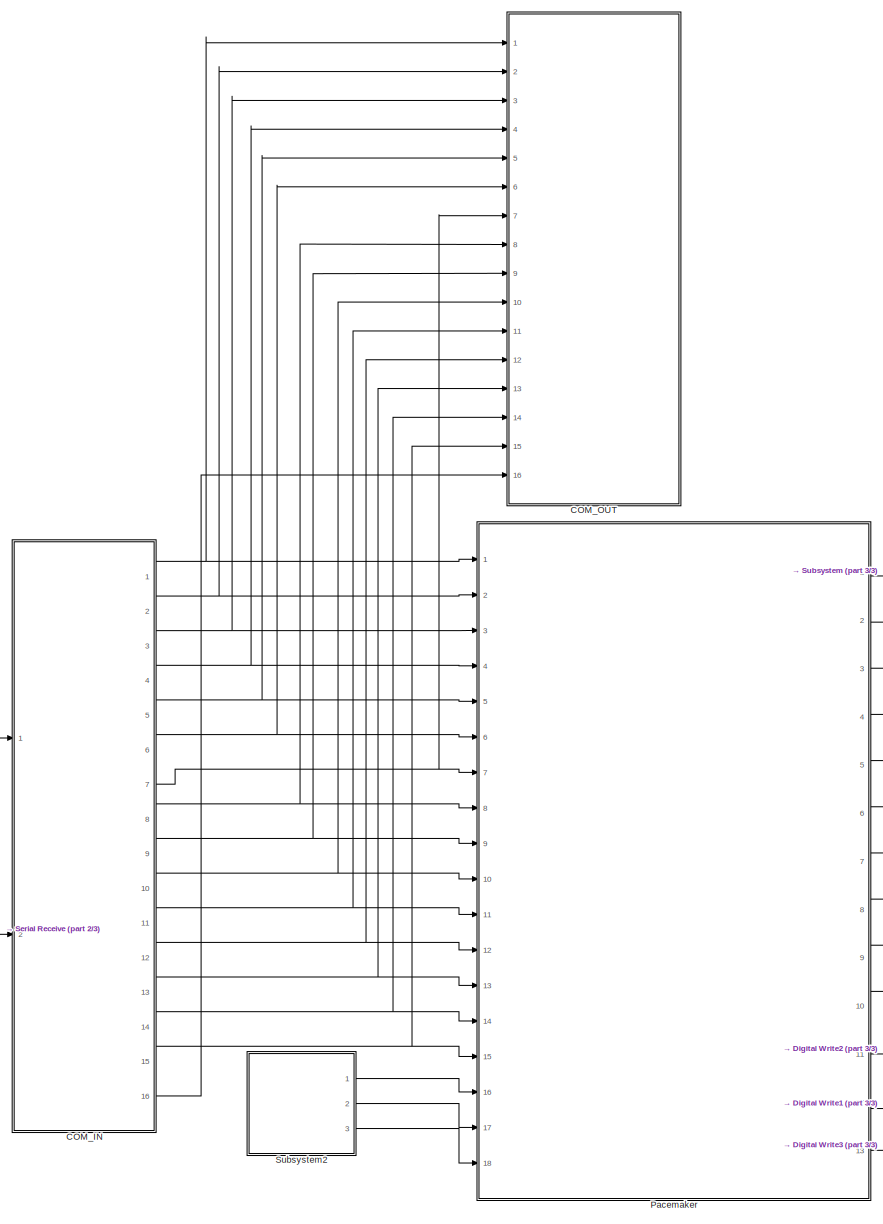
[diagram: root canvas - part 1/3, center side, full height]
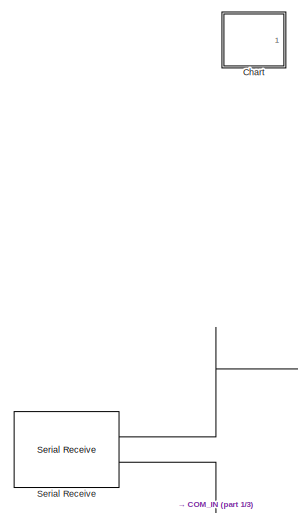
[diagram: root canvas - part 2/3, middle left region]
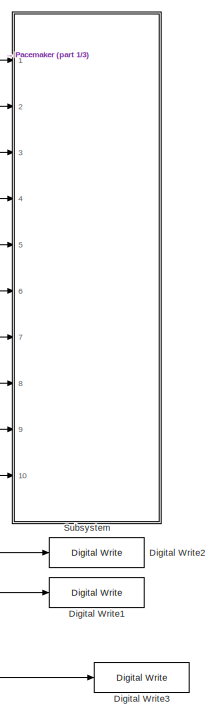
[diagram: root canvas - part 3/3, bottom right region]
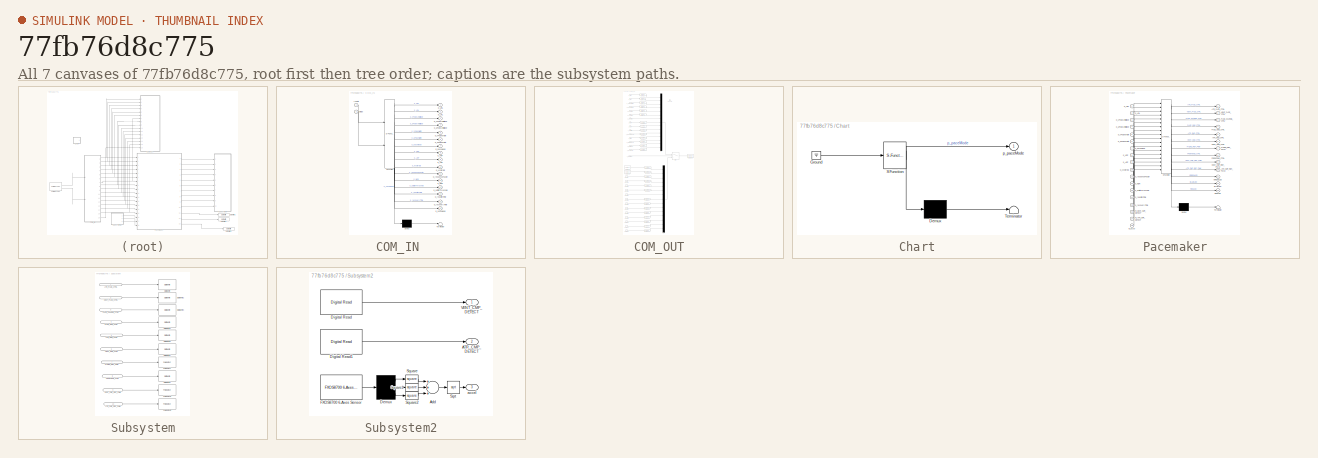
[diagram: thumbnail index - all 7 canvases of the model, root first then tree order]
MODEL slx_77fb76d8c775
KIND model
CONFIG AbsTol = auto
CONFIG EnableMultiTasking = on
CONFIG FixedStep = 1E-3
CONFIG MaxStep = auto
CONFIG MinStep = auto
CONFIG RelTol = 1e-3
CONFIG SampleTimeConstraint = Unconstrained
CONFIG Solver = FixedStepAuto
CONFIG SolverName = FixedStepAuto
CONFIG StartTime = 0.0
CONFIG StopTime = inf
BLOCK [SubSystem] COM_IN 
  ErrorFcn = Stateflow.Translate.translate
  PermitHierarchicalResolution = ExplicitOnly
  Ports = [2, 16]
  RequestExecContextInheritance = off
  SFBlockType = Chart
  TreatAsAtomicUnit = on
  Variant = off
BLOCK [Demux] COM_IN / Demux 
  Outputs = 1
  Ports = [1, 1]
BLOCK [S-Function] COM_IN / SFunction 
  EnableBusSupport = on
  FunctionName = sf_sfun
  PortCounts = [2 17]
  Ports = [2, 17]
  SFcnIsStateOwnerBlock = off
  SFunctionDeploymentMode = off
  Tag = Stateflow S-Function Assignment2_2017 1
BLOCK [Terminator] COM_IN / Terminator 
BLOCK [Outport] COM_IN /p_ARP
  IconDisplay = Port number
  Port = 9
BLOCK [Outport] COM_IN /p_Hysterisis
  IconDisplay = Port number
  Port = 10
BLOCK [Outport] COM_IN /p_LRL
  IconDisplay = Port number
  Port = 2
BLOCK [Outport] COM_IN /p_MSR
  IconDisplay = Port number
  Port = 12
BLOCK [Outport] COM_IN /p_URL
  IconDisplay = Port number
BLOCK [Outport] COM_IN /p_VRP
  IconDisplay = Port number
  Port = 8
BLOCK [Outport] COM_IN /p_aPulseAmplitude
  IconDisplay = Port number
  Port = 4
BLOCK [Outport] COM_IN /p_aPulseWidth
  IconDisplay = Port number
  Port = 6
BLOCK [Outport] COM_IN /p_activityThreshold
  IconDisplay = Port number
  Port = 13
BLOCK [Outport] COM_IN /p_paceMode
  IconDisplay = Port number
  Port = 7
BLOCK [Outport] COM_IN /p_reactionTime
  IconDisplay = Port number
  Port = 14
BLOCK [Outport] COM_IN /p_recoveryTime
  IconDisplay = Port number
  Port = 15
BLOCK [Outport] COM_IN /p_responseFactor
  IconDisplay = Port number
  Port = 11
BLOCK [Outport] COM_IN /p_sendMode
  IconDisplay = Port number
  Port = 16
BLOCK [Outport] COM_IN /p_vPulseAmplitude
  IconDisplay = Port number
  Port = 3
BLOCK [Outport] COM_IN /p_vPulseWidth
  IconDisplay = Port number
  Port = 5
BLOCK [Inport] COM_IN /rxdata
  IconDisplay = Port number
BLOCK [Inport] COM_IN /status
  IconDisplay = Port number
  Port = 2
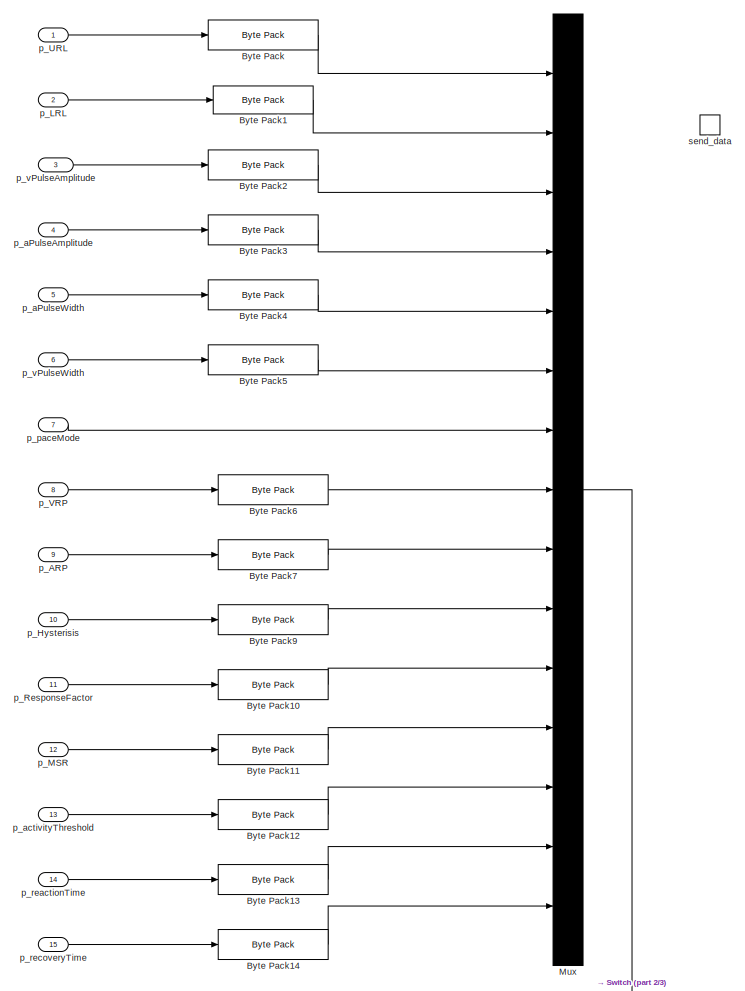
[diagram: COM_OUT - part 1/3, top center region]
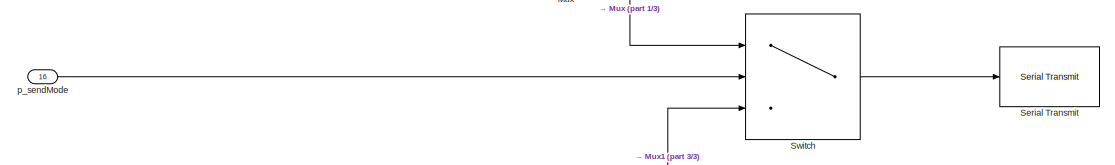
[diagram: COM_OUT - part 2/3, full width, middle band]
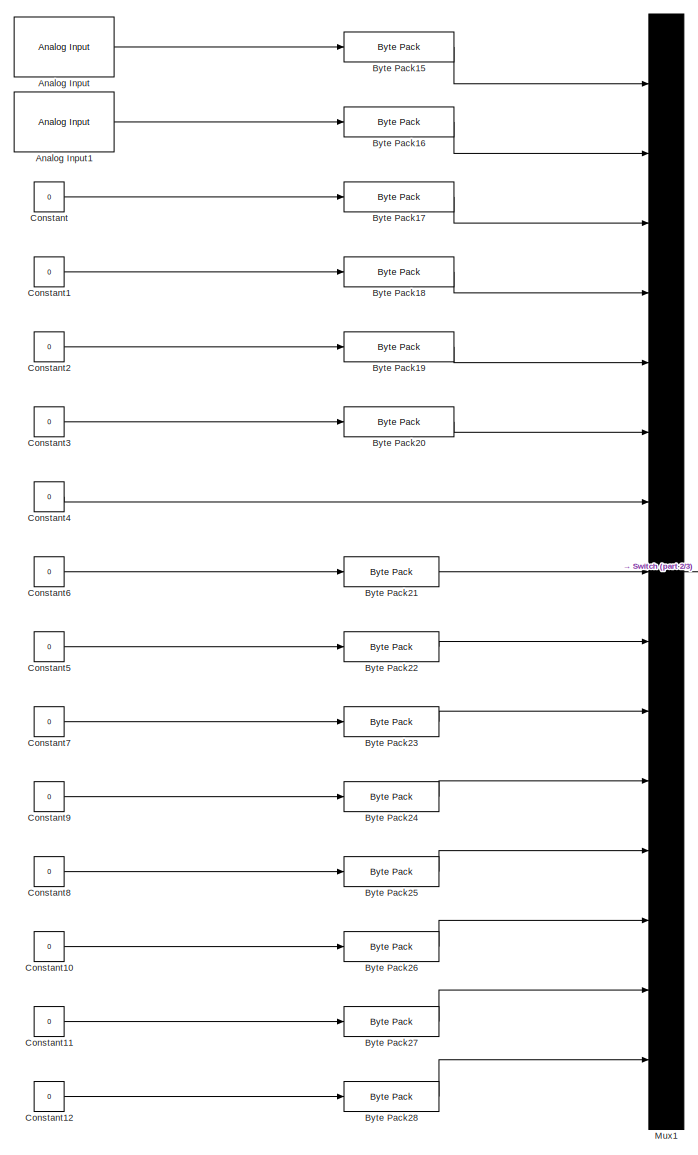
[diagram: COM_OUT - part 3/3, bottom left region]
BLOCK [SubSystem] COM_OUT
  Ports = [16, 0, 0, 1]
  RequestExecContextInheritance = off
  TreatAsAtomicUnit = on
  Variant = off
BLOCK [Inport] COM_OUT/ p_LRL 
  IconDisplay = Port number
  Port = 2
BLOCK [Inport] COM_OUT/ p_vPulseAmplitude 
  IconDisplay = Port number
  Port = 3
BLOCK [Reference] COM_OUT/Analog Input  REF=frdmk64flib/Analog Input
  Ports = [0, 1]
  SourceBlock = frdmk64flib/Analog Input
  SourceProductBaseCode = EC_FRDM_K64F
  SourceProductName = Simulink Coder Support Package for NXP FRDM-K64F Board
  SourceType = freedomk64f.AnalogInput
BLOCK [Reference] COM_OUT/Analog Input1  REF=frdmk64flib/Analog Input
  Ports = [0, 1]
  SourceBlock = frdmk64flib/Analog Input
  SourceProductBaseCode = EC_FRDM_K64F
  SourceProductName = Simulink Coder Support Package for NXP FRDM-K64F Board
  SourceType = freedomk64f.AnalogInput
BLOCK [Reference] COM_OUT/Byte Pack  REF=etargetslib/Byte Pack
  Ports = [1, 1]
  SourceBlock = etargetslib/Byte Pack
  SourceType = Byte pack
BLOCK [Reference] COM_OUT/Byte Pack1  REF=etargetslib/Byte Pack
  Ports = [1, 1]
  SourceBlock = etargetslib/Byte Pack
  SourceType = Byte pack
BLOCK [Reference] COM_OUT/Byte Pack10  REF=etargetslib/Byte Pack
  Ports = [1, 1]
  SourceBlock = etargetslib/Byte Pack
  SourceType = Byte pack
BLOCK [Reference] COM_OUT/Byte Pack11  REF=etargetslib/Byte Pack
  Ports = [1, 1]
  SourceBlock = etargetslib/Byte Pack
  SourceType = Byte pack
BLOCK [Reference] COM_OUT/Byte Pack12  REF=etargetslib/Byte Pack
  Ports = [1, 1]
  SourceBlock = etargetslib/Byte Pack
  SourceType = Byte pack
BLOCK [Reference] COM_OUT/Byte Pack13  REF=etargetslib/Byte Pack
  Ports = [1, 1]
  SourceBlock = etargetslib/Byte Pack
  SourceType = Byte pack
BLOCK [Reference] COM_OUT/Byte Pack14  REF=etargetslib/Byte Pack
  Ports = [1, 1]
  SourceBlock = etargetslib/Byte Pack
  SourceType = Byte pack
BLOCK [Reference] COM_OUT/Byte Pack15  REF=etargetslib/Byte Pack
  Ports = [1, 1]
  SourceBlock = etargetslib/Byte Pack
  SourceType = Byte pack
BLOCK [Reference] COM_OUT/Byte Pack16  REF=etargetslib/Byte Pack
  Ports = [1, 1]
  SourceBlock = etargetslib/Byte Pack
  SourceType = Byte pack
BLOCK [Reference] COM_OUT/Byte Pack17  REF=etargetslib/Byte Pack
  Ports = [1, 1]
  SourceBlock = etargetslib/Byte Pack
  SourceType = Byte pack
BLOCK [Reference] COM_OUT/Byte Pack18  REF=etargetslib/Byte Pack
  Ports = [1, 1]
  SourceBlock = etargetslib/Byte Pack
  SourceType = Byte pack
BLOCK [Reference] COM_OUT/Byte Pack19  REF=etargetslib/Byte Pack
  Ports = [1, 1]
  SourceBlock = etargetslib/Byte Pack
  SourceType = Byte pack
BLOCK [Reference] COM_OUT/Byte Pack2  REF=etargetslib/Byte Pack
  Ports = [1, 1]
  SourceBlock = etargetslib/Byte Pack
  SourceType = Byte pack
BLOCK [Reference] COM_OUT/Byte Pack20  REF=etargetslib/Byte Pack
  Ports = [1, 1]
  SourceBlock = etargetslib/Byte Pack
  SourceType = Byte pack
BLOCK [Reference] COM_OUT/Byte Pack21  REF=etargetslib/Byte Pack
  Ports = [1, 1]
  SourceBlock = etargetslib/Byte Pack
  SourceType = Byte pack
BLOCK [Reference] COM_OUT/Byte Pack22  REF=etargetslib/Byte Pack
  Ports = [1, 1]
  SourceBlock = etargetslib/Byte Pack
  SourceType = Byte pack
BLOCK [Reference] COM_OUT/Byte Pack23  REF=etargetslib/Byte Pack
  Ports = [1, 1]
  SourceBlock = etargetslib/Byte Pack
  SourceType = Byte pack
BLOCK [Reference] COM_OUT/Byte Pack24  REF=etargetslib/Byte Pack
  Ports = [1, 1]
  SourceBlock = etargetslib/Byte Pack
  SourceType = Byte pack
BLOCK [Reference] COM_OUT/Byte Pack25  REF=etargetslib/Byte Pack
  Ports = [1, 1]
  SourceBlock = etargetslib/Byte Pack
  SourceType = Byte pack
BLOCK [Reference] COM_OUT/Byte Pack26  REF=etargetslib/Byte Pack
  Ports = [1, 1]
  SourceBlock = etargetslib/Byte Pack
  SourceType = Byte pack
BLOCK [Reference] COM_OUT/Byte Pack27  REF=etargetslib/Byte Pack
  Ports = [1, 1]
  SourceBlock = etargetslib/Byte Pack
  SourceType = Byte pack
BLOCK [Reference] COM_OUT/Byte Pack28  REF=etargetslib/Byte Pack
  Ports = [1, 1]
  SourceBlock = etargetslib/Byte Pack
  SourceType = Byte pack
BLOCK [Reference] COM_OUT/Byte Pack3  REF=etargetslib/Byte Pack
  Ports = [1, 1]
  SourceBlock = etargetslib/Byte Pack
  SourceType = Byte pack
BLOCK [Reference] COM_OUT/Byte Pack4  REF=etargetslib/Byte Pack
  Ports = [1, 1]
  SourceBlock = etargetslib/Byte Pack
  SourceType = Byte pack
BLOCK [Reference] COM_OUT/Byte Pack5  REF=etargetslib/Byte Pack
  Ports = [1, 1]
  SourceBlock = etargetslib/Byte Pack
  SourceType = Byte pack
BLOCK [Reference] COM_OUT/Byte Pack6  REF=etargetslib/Byte Pack
  Ports = [1, 1]
  SourceBlock = etargetslib/Byte Pack
  SourceType = Byte pack
BLOCK [Reference] COM_OUT/Byte Pack7  REF=etargetslib/Byte Pack
  Ports = [1, 1]
  SourceBlock = etargetslib/Byte Pack
  SourceType = Byte pack
BLOCK [Reference] COM_OUT/Byte Pack9  REF=etargetslib/Byte Pack
  Ports = [1, 1]
  SourceBlock = etargetslib/Byte Pack
  SourceType = Byte pack
BLOCK [Constant] COM_OUT/Constant
  OutDataTypeStr = double
  Value = 0
BLOCK [Constant] COM_OUT/Constant1
  OutDataTypeStr = double
  Value = 0
BLOCK [Constant] COM_OUT/Constant10
  OutDataTypeStr = double
  Value = 0
BLOCK [Constant] COM_OUT/Constant11
  OutDataTypeStr = double
  Value = 0
BLOCK [Constant] COM_OUT/Constant12
  OutDataTypeStr = double
  Value = 0
BLOCK [Constant] COM_OUT/Constant2
  OutDataTypeStr = double
  Value = 0
BLOCK [Constant] COM_OUT/Constant3
  OutDataTypeStr = double
  Value = 0
BLOCK [Constant] COM_OUT/Constant4
  OutDataTypeStr = uint8
  Value = 0
BLOCK [Constant] COM_OUT/Constant5
  OutDataTypeStr = double
  Value = 0
BLOCK [Constant] COM_OUT/Constant6
  OutDataTypeStr = double
  Value = 0
BLOCK [Constant] COM_OUT/Constant7
  OutDataTypeStr = double
  Value = 0
BLOCK [Constant] COM_OUT/Constant8
  OutDataTypeStr = double
  Value = 0
BLOCK [Constant] COM_OUT/Constant9
  OutDataTypeStr = double
  Value = 0
BLOCK [Mux] COM_OUT/Mux
  DisplayOption = bar
  Inputs = 15
  Ports = [15, 1]
BLOCK [Mux] COM_OUT/Mux1
  DisplayOption = bar
  Inputs = 15
  Ports = [15, 1]
BLOCK [Reference] COM_OUT/Serial Transmit  REF=frdmk64flib/Serial Transmit
  Ports = [1]
  SourceBlock = frdmk64flib/Serial Transmit
  SourceProductBaseCode = EC_FRDM_K64F
  SourceProductName = Simulink Coder Support Package for NXP FRDM-K64F Board
  SourceType = freedomk64f.SCIWrite
BLOCK [Switch] COM_OUT/Switch
  Criteria = u2 ~= 0
  InputSameDT = off
  SaturateOnIntegerOverflow = off
BLOCK [Inport] COM_OUT/p_ARP 
  IconDisplay = Port number
  Port = 9
BLOCK [Inport] COM_OUT/p_Hysterisis 
  IconDisplay = Port number
  Port = 10
BLOCK [Inport] COM_OUT/p_MSR
  IconDisplay = Port number
  Port = 12
BLOCK [Inport] COM_OUT/p_ResponseFactor 
  IconDisplay = Port number
  Port = 11
BLOCK [Inport] COM_OUT/p_URL 
  IconDisplay = Port number
BLOCK [Inport] COM_OUT/p_VRP
  IconDisplay = Port number
  Port = 8
BLOCK [Inport] COM_OUT/p_aPulseAmplitude 
  IconDisplay = Port number
  Port = 4
BLOCK [Inport] COM_OUT/p_aPulseWidth 
  IconDisplay = Port number
  Port = 5
BLOCK [Inport] COM_OUT/p_activityThreshold 
  IconDisplay = Port number
  Port = 13
BLOCK [Inport] COM_OUT/p_paceMode 
  IconDisplay = Port number
  Port = 7
BLOCK [Inport] COM_OUT/p_reactionTime 
  IconDisplay = Port number
  Port = 14
BLOCK [Inport] COM_OUT/p_recoveryTime 
  IconDisplay = Port number
  Port = 15
BLOCK [Inport] COM_OUT/p_sendMode 
  IconDisplay = Port number
  OutDataTypeStr = uint8
  Port = 16
BLOCK [Inport] COM_OUT/p_vPulseWidth 
  IconDisplay = Port number
  Port = 6
BLOCK [TriggerPort] COM_OUT/send_data
  FunctionName = send_data
  IsSimulinkFunction = on
  PortDimensions = 1
  Ports = []
  StatesWhenEnabling = held
  TriggerType = function-call
  VariantControl = Variant
BLOCK [SubSystem] Chart
  ErrorFcn = Stateflow.Translate.translate
  PermitHierarchicalResolution = ExplicitOnly
  Ports = [0, 1]
  RequestExecContextInheritance = off
  SFBlockType = Chart
  TreatAsAtomicUnit = on
  Variant = off
BLOCK [Demux] Chart/ Demux 
  Outputs = 1
  Ports = [1, 1]
BLOCK [Ground] Chart/ Ground 
BLOCK [S-Function] Chart/ SFunction 
  EnableBusSupport = on
  FunctionName = sf_sfun
  PortCounts = [1 2]
  Ports = [1, 2]
  SFcnIsStateOwnerBlock = off
  SFunctionDeploymentMode = off
  Tag = Stateflow S-Function Assignment2_2017 2
BLOCK [Terminator] Chart/ Terminator 
BLOCK [Outport] Chart/p_paceMode
  IconDisplay = Port number
BLOCK [Reference] Digital Write1  REF=frdmk64flib/Digital Write
  Ports = [1]
  SourceBlock = frdmk64flib/Digital Write
  SourceProductBaseCode = EC_FRDM_K64F
  SourceProductName = Simulink Coder Support Package for NXP FRDM-K64F Board
  SourceType = freedomk64f.DigitalWrite
BLOCK [Reference] Digital Write2  REF=frdmk64flib/Digital Write
  Ports = [1]
  SourceBlock = frdmk64flib/Digital Write
  SourceProductBaseCode = EC_FRDM_K64F
  SourceProductName = Simulink Coder Support Package for NXP FRDM-K64F Board
  SourceType = freedomk64f.DigitalWrite
BLOCK [Reference] Digital Write3  REF=frdmk64flib/Digital Write
  Ports = [1]
  SourceBlock = frdmk64flib/Digital Write
  SourceProductBaseCode = EC_FRDM_K64F
  SourceProductName = Simulink Coder Support Package for NXP FRDM-K64F Board
  SourceType = freedomk64f.DigitalWrite
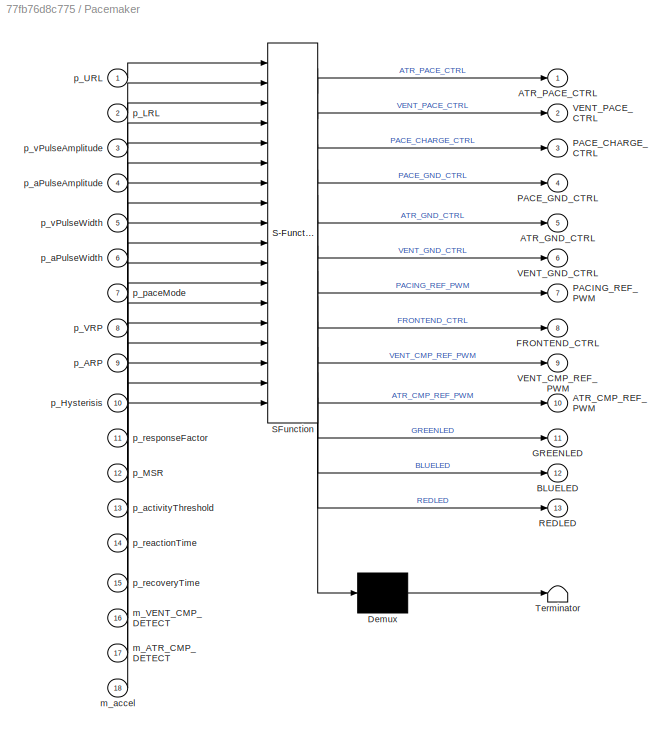
BLOCK [SubSystem] Pacemaker
  ErrorFcn = Stateflow.Translate.translate
  PermitHierarchicalResolution = ExplicitOnly
  Ports = [18, 13]
  RequestExecContextInheritance = off
  SFBlockType = Chart
  TreatAsAtomicUnit = on
  Variant = off
BLOCK [Demux] Pacemaker/ Demux 
  Outputs = 1
  Ports = [1, 1]
BLOCK [S-Function] Pacemaker/ SFunction 
  EnableBusSupport = on
  FunctionName = sf_sfun
  PortCounts = [18 14]
  Ports = [18, 14]
  SFcnIsStateOwnerBlock = off
  SFunctionDeploymentMode = off
  Tag = Stateflow S-Function Assignment2_2017 3
BLOCK [Terminator] Pacemaker/ Terminator 
BLOCK [Outport] Pacemaker/ATR_CMP_REF_PWM
  IconDisplay = Port number
  Port = 10
BLOCK [Outport] Pacemaker/ATR_GND_CTRL
  IconDisplay = Port number
  Port = 5
BLOCK [Outport] Pacemaker/ATR_PACE_CTRL
  IconDisplay = Port number
BLOCK [Outport] Pacemaker/BLUELED
  IconDisplay = Port number
  Port = 12
BLOCK [Outport] Pacemaker/FRONTEND_CTRL
  IconDisplay = Port number
  Port = 8
BLOCK [Outport] Pacemaker/GREENLED
  IconDisplay = Port number
  Port = 11
BLOCK [Outport] Pacemaker/PACE_CHARGE_CTRL
  IconDisplay = Port number
  Port = 3
BLOCK [Outport] Pacemaker/PACE_GND_CTRL
  IconDisplay = Port number
  Port = 4
BLOCK [Outport] Pacemaker/PACING_REF_PWM
  IconDisplay = Port number
  Port = 7
BLOCK [Outport] Pacemaker/REDLED
  IconDisplay = Port number
  Port = 13
BLOCK [Outport] Pacemaker/VENT_CMP_REF_PWM
  IconDisplay = Port number
  Port = 9
BLOCK [Outport] Pacemaker/VENT_GND_CTRL
  IconDisplay = Port number
  Port = 6
BLOCK [Outport] Pacemaker/VENT_PACE_CTRL
  IconDisplay = Port number
  Port = 2
BLOCK [Inport] Pacemaker/m_ATR_CMP_DETECT
  IconDisplay = Port number
  Port = 17
BLOCK [Inport] Pacemaker/m_VENT_CMP_DETECT
  IconDisplay = Port number
  Port = 16
BLOCK [Inport] Pacemaker/m_accel
  IconDisplay = Port number
  Port = 18
BLOCK [Inport] Pacemaker/p_ARP
  IconDisplay = Port number
  Port = 9
BLOCK [Inport] Pacemaker/p_Hysterisis
  IconDisplay = Port number
  Port = 10
BLOCK [Inport] Pacemaker/p_LRL
  IconDisplay = Port number
  Port = 2
BLOCK [Inport] Pacemaker/p_MSR
  IconDisplay = Port number
  Port = 12
BLOCK [Inport] Pacemaker/p_URL
  IconDisplay = Port number
BLOCK [Inport] Pacemaker/p_VRP
  IconDisplay = Port number
  Port = 8
BLOCK [Inport] Pacemaker/p_aPulseAmplitude
  IconDisplay = Port number
  Port = 4
BLOCK [Inport] Pacemaker/p_aPulseWidth
  IconDisplay = Port number
  Port = 6
BLOCK [Inport] Pacemaker/p_activityThreshold
  IconDisplay = Port number
  Port = 13
BLOCK [Inport] Pacemaker/p_paceMode
  IconDisplay = Port number
  Port = 7
BLOCK [Inport] Pacemaker/p_reactionTime
  IconDisplay = Port number
  Port = 14
BLOCK [Inport] Pacemaker/p_recoveryTime
  IconDisplay = Port number
  Port = 15
BLOCK [Inport] Pacemaker/p_responseFactor
  IconDisplay = Port number
  Port = 11
BLOCK [Inport] Pacemaker/p_vPulseAmplitude
  IconDisplay = Port number
  Port = 3
BLOCK [Inport] Pacemaker/p_vPulseWidth
  IconDisplay = Port number
  Port = 5
BLOCK [Reference] Serial Receive  REF=frdmk64flib/Serial Receive
  Ports = [0, 2]
  SourceBlock = frdmk64flib/Serial Receive
  SourceProductBaseCode = EC_FRDM_K64F
  SourceProductName = Simulink Coder Support Package for NXP FRDM-K64F Board
  SourceType = freedomk64f.SCIRead
BLOCK [SubSystem] Subsystem
  Ports = [10]
  RequestExecContextInheritance = off
  Variant = off
BLOCK [Inport] Subsystem/ATR_CMP_REF_PWM
  IconDisplay = Port number
  Port = 10
BLOCK [Inport] Subsystem/ATR_GND_CTRL
  IconDisplay = Port number
  Port = 5
BLOCK [Inport] Subsystem/ATR_PACE_CTRL
  IconDisplay = Port number
BLOCK [Reference] Subsystem/Digital Write  REF=frdmk64flib/Digital Write
  Ports = [1]
  SourceBlock = frdmk64flib/Digital Write
  SourceProductBaseCode = EC_FRDM_K64F
  SourceProductName = Simulink Coder Support Package for NXP FRDM-K64F Board
  SourceType = freedomk64f.DigitalWrite
BLOCK [Reference] Subsystem/Digital Write1  REF=frdmk64flib/Digital Write
  Ports = [1]
  SourceBlock = frdmk64flib/Digital Write
  SourceProductBaseCode = EC_FRDM_K64F
  SourceProductName = Simulink Coder Support Package for NXP FRDM-K64F Board
  SourceType = freedomk64f.DigitalWrite
BLOCK [Reference] Subsystem/Digital Write2  REF=frdmk64flib/Digital Write
  Ports = [1]
  SourceBlock = frdmk64flib/Digital Write
  SourceProductBaseCode = EC_FRDM_K64F
  SourceProductName = Simulink Coder Support Package for NXP FRDM-K64F Board
  SourceType = freedomk64f.DigitalWrite
BLOCK [Reference] Subsystem/Digital Write3  REF=frdmk64flib/Digital Write
  Ports = [1]
  SourceBlock = frdmk64flib/Digital Write
  SourceProductBaseCode = EC_FRDM_K64F
  SourceProductName = Simulink Coder Support Package for NXP FRDM-K64F Board
  SourceType = freedomk64f.DigitalWrite
BLOCK [Reference] Subsystem/Digital Write4  REF=frdmk64flib/Digital Write
  Ports = [1]
  SourceBlock = frdmk64flib/Digital Write
  SourceProductBaseCode = EC_FRDM_K64F
  SourceProductName = Simulink Coder Support Package for NXP FRDM-K64F Board
  SourceType = freedomk64f.DigitalWrite
BLOCK [Reference] Subsystem/Digital Write6  REF=frdmk64flib/Digital Write
  Ports = [1]
  SourceBlock = frdmk64flib/Digital Write
  SourceProductBaseCode = EC_FRDM_K64F
  SourceProductName = Simulink Coder Support Package for NXP FRDM-K64F Board
  SourceType = freedomk64f.DigitalWrite
BLOCK [Reference] Subsystem/Digital Write7  REF=frdmk64flib/Digital Write
  Ports = [1]
  SourceBlock = frdmk64flib/Digital Write
  SourceProductBaseCode = EC_FRDM_K64F
  SourceProductName = Simulink Coder Support Package for NXP FRDM-K64F Board
  SourceType = freedomk64f.DigitalWrite
BLOCK [Inport] Subsystem/FRONTEND_CTRL
  IconDisplay = Port number
  Port = 8
BLOCK [Inport] Subsystem/PACE_CHARGE_CTRL
  IconDisplay = Port number
  Port = 3
BLOCK [Inport] Subsystem/PACE_GND_CTRL
  IconDisplay = Port number
  Port = 4
BLOCK [Inport] Subsystem/PACING_REF_PWM
  IconDisplay = Port number
  Port = 7
BLOCK [Reference] Subsystem/PWM Output  REF=frdmk64flib/PWM Output
  Ports = [1]
  SourceBlock = frdmk64flib/PWM Output
  SourceProductBaseCode = EC_FRDM_K64F
  SourceProductName = Simulink Coder Support Package for NXP FRDM-K64F Board
  SourceType = freedomk64f.PWMOutput
BLOCK [Reference] Subsystem/PWM Output1  REF=frdmk64flib/PWM Output
  Ports = [1]
  SourceBlock = frdmk64flib/PWM Output
  SourceProductBaseCode = EC_FRDM_K64F
  SourceProductName = Simulink Coder Support Package for NXP FRDM-K64F Board
  SourceType = freedomk64f.PWMOutput
BLOCK [Reference] Subsystem/PWM Output2  REF=frdmk64flib/PWM Output
  Ports = [1]
  SourceBlock = frdmk64flib/PWM Output
  SourceProductBaseCode = EC_FRDM_K64F
  SourceProductName = Simulink Coder Support Package for NXP FRDM-K64F Board
  SourceType = freedomk64f.PWMOutput
BLOCK [Inport] Subsystem/VENT_CMP_REF_PWM
  IconDisplay = Port number
  Port = 9
BLOCK [Inport] Subsystem/VENT_GND_CTRL
  IconDisplay = Port number
  Port = 6
BLOCK [Inport] Subsystem/VENT_PACE_CTRL
  IconDisplay = Port number
  Port = 2
BLOCK [SubSystem] Subsystem2
  Ports = [0, 3]
  RequestExecContextInheritance = off
  Variant = off
BLOCK [Outport] Subsystem2/ATR_CMP_DETECT
  IconDisplay = Port number
  Port = 2
BLOCK [Sum] Subsystem2/Add
  InputSameDT = off
  Inputs = +++
  OutDataTypeStr = Inherit: Inherit via internal rule
  Ports = [3, 1]
  SaturateOnIntegerOverflow = off
BLOCK [Demux] Subsystem2/Demux
  Outputs = 3
  Ports = [1, 3]
BLOCK [Reference] Subsystem2/Digital Read  REF=frdmk64flib/Digital Read
  Ports = [0, 1]
  SourceBlock = frdmk64flib/Digital Read
  SourceProductBaseCode = EC_FRDM_K64F
  SourceProductName = Simulink Coder Support Package for NXP FRDM-K64F Board
  SourceType = freedomk64f.DigitalRead
BLOCK [Reference] Subsystem2/Digital Read1  REF=frdmk64flib/Digital Read
  Ports = [0, 1]
  SourceBlock = frdmk64flib/Digital Read
  SourceProductBaseCode = EC_FRDM_K64F
  SourceProductName = Simulink Coder Support Package for NXP FRDM-K64F Board
  SourceType = freedomk64f.DigitalRead
BLOCK [Reference] Subsystem2/FXOS8700 6-Axes Sensor  REF=frdmk64flib/FXOS8700 6-Axes Sensor
  Ports = [0, 1]
  SourceBlock = frdmk64flib/FXOS8700 6-Axes Sensor
  SourceProductBaseCode = EC_FRDM_K64F
  SourceProductName = Simulink Coder Support Package for NXP FRDM-K64F Board
  SourceType = freedomk64f.fxos8700
BLOCK [Sqrt] Subsystem2/Sqrt
BLOCK [Math] Subsystem2/Square
  Operator = square
  Ports = [1, 1]
  RndMeth = Zero
BLOCK [Math] Subsystem2/Square1
  Operator = square
  Ports = [1, 1]
  RndMeth = Zero
BLOCK [Math] Subsystem2/Square2
  Operator = square
  Ports = [1, 1]
  RndMeth = Zero
BLOCK [Outport] Subsystem2/VENT_CMP_DETECT
  IconDisplay = Port number
BLOCK [Outport] Subsystem2/accel
  IconDisplay = Port number
  Port = 3
NET COM_IN :1 -> COM_OUT:1, Pacemaker:1
NET COM_IN :10 -> COM_OUT:10, Pacemaker:10
NET COM_IN :11 -> COM_OUT:11, Pacemaker:11
NET COM_IN :12 -> COM_OUT:12, Pacemaker:12
NET COM_IN :13 -> COM_OUT:13, Pacemaker:13
NET COM_IN :14 -> COM_OUT:14, Pacemaker:14
NET COM_IN :15 -> COM_OUT:15, Pacemaker:15
LINE COM_IN :16 -> COM_OUT:16
NET COM_IN :2 -> COM_OUT:2, Pacemaker:2
NET COM_IN :3 -> COM_OUT:3, Pacemaker:3
NET COM_IN :4 -> COM_OUT:4, Pacemaker:4
NET COM_IN :5 -> COM_OUT:5, Pacemaker:5
NET COM_IN :6 -> COM_OUT:6, Pacemaker:6
NET COM_IN :7 -> COM_OUT:7, Pacemaker:7
NET COM_IN :8 -> COM_OUT:8, Pacemaker:8
NET COM_IN :9 -> COM_OUT:9, Pacemaker:9
LINE COM_OUT/ p_LRL :1 -> COM_OUT/Byte Pack1:1
LINE COM_OUT/ p_vPulseAmplitude :1 -> COM_OUT/Byte Pack2:1
LINE COM_OUT/Analog Input1:1 -> COM_OUT/Byte Pack16:1
LINE COM_OUT/Analog Input:1 -> COM_OUT/Byte Pack15:1
LINE COM_OUT/Byte Pack10:1 -> COM_OUT/Mux:11
LINE COM_OUT/Byte Pack11:1 -> COM_OUT/Mux:12
LINE COM_OUT/Byte Pack12:1 -> COM_OUT/Mux:13
LINE COM_OUT/Byte Pack13:1 -> COM_OUT/Mux:14
LINE COM_OUT/Byte Pack14:1 -> COM_OUT/Mux:15
LINE COM_OUT/Byte Pack15:1 -> COM_OUT/Mux1:1
LINE COM_OUT/Byte Pack16:1 -> COM_OUT/Mux1:2
LINE COM_OUT/Byte Pack17:1 -> COM_OUT/Mux1:3
LINE COM_OUT/Byte Pack18:1 -> COM_OUT/Mux1:4
LINE COM_OUT/Byte Pack19:1 -> COM_OUT/Mux1:5
LINE COM_OUT/Byte Pack1:1 -> COM_OUT/Mux:2
LINE COM_OUT/Byte Pack20:1 -> COM_OUT/Mux1:6
LINE COM_OUT/Byte Pack21:1 -> COM_OUT/Mux1:8
LINE COM_OUT/Byte Pack22:1 -> COM_OUT/Mux1:9
LINE COM_OUT/Byte Pack23:1 -> COM_OUT/Mux1:10
LINE COM_OUT/Byte Pack24:1 -> COM_OUT/Mux1:11
LINE COM_OUT/Byte Pack25:1 -> COM_OUT/Mux1:12
LINE COM_OUT/Byte Pack26:1 -> COM_OUT/Mux1:13
LINE COM_OUT/Byte Pack27:1 -> COM_OUT/Mux1:14
LINE COM_OUT/Byte Pack28:1 -> COM_OUT/Mux1:15
LINE COM_OUT/Byte Pack2:1 -> COM_OUT/Mux:3
LINE COM_OUT/Byte Pack3:1 -> COM_OUT/Mux:4
LINE COM_OUT/Byte Pack4:1 -> COM_OUT/Mux:5
LINE COM_OUT/Byte Pack5:1 -> COM_OUT/Mux:6
LINE COM_OUT/Byte Pack6:1 -> COM_OUT/Mux:8
LINE COM_OUT/Byte Pack7:1 -> COM_OUT/Mux:9
LINE COM_OUT/Byte Pack9:1 -> COM_OUT/Mux:10
LINE COM_OUT/Byte Pack:1 -> COM_OUT/Mux:1
LINE COM_OUT/Constant10:1 -> COM_OUT/Byte Pack26:1
LINE COM_OUT/Constant11:1 -> COM_OUT/Byte Pack27:1
LINE COM_OUT/Constant12:1 -> COM_OUT/Byte Pack28:1
LINE COM_OUT/Constant1:1 -> COM_OUT/Byte Pack18:1
LINE COM_OUT/Constant2:1 -> COM_OUT/Byte Pack19:1
LINE COM_OUT/Constant3:1 -> COM_OUT/Byte Pack20:1
LINE COM_OUT/Constant4:1 -> COM_OUT/Mux1:7
LINE COM_OUT/Constant5:1 -> COM_OUT/Byte Pack22:1
LINE COM_OUT/Constant6:1 -> COM_OUT/Byte Pack21:1
LINE COM_OUT/Constant7:1 -> COM_OUT/Byte Pack23:1
LINE COM_OUT/Constant8:1 -> COM_OUT/Byte Pack25:1
LINE COM_OUT/Constant9:1 -> COM_OUT/Byte Pack24:1
LINE COM_OUT/Constant:1 -> COM_OUT/Byte Pack17:1
LINE COM_OUT/Mux1:1 -> COM_OUT/Switch:3
LINE COM_OUT/Mux:1 -> COM_OUT/Switch:1
LINE COM_OUT/Switch:1 -> COM_OUT/Serial Transmit:1
LINE COM_OUT/p_ARP :1 -> COM_OUT/Byte Pack7:1
LINE COM_OUT/p_Hysterisis :1 -> COM_OUT/Byte Pack9:1
LINE COM_OUT/p_MSR:1 -> COM_OUT/Byte Pack11:1
LINE COM_OUT/p_ResponseFactor :1 -> COM_OUT/Byte Pack10:1
LINE COM_OUT/p_URL :1 -> COM_OUT/Byte Pack:1
LINE COM_OUT/p_VRP:1 -> COM_OUT/Byte Pack6:1
LINE COM_OUT/p_aPulseAmplitude :1 -> COM_OUT/Byte Pack3:1
LINE COM_OUT/p_aPulseWidth :1 -> COM_OUT/Byte Pack4:1
LINE COM_OUT/p_activityThreshold :1 -> COM_OUT/Byte Pack12:1
LINE COM_OUT/p_paceMode :1 -> COM_OUT/Mux:7
LINE COM_OUT/p_reactionTime :1 -> COM_OUT/Byte Pack13:1
LINE COM_OUT/p_recoveryTime :1 -> COM_OUT/Byte Pack14:1
LINE COM_OUT/p_sendMode :1 -> COM_OUT/Switch:2
LINE COM_OUT/p_vPulseWidth :1 -> COM_OUT/Byte Pack5:1
LINE Pacemaker:1 -> Subsystem:1
LINE Pacemaker:10 -> Subsystem:10
LINE Pacemaker:11 -> Digital Write2:1
LINE Pacemaker:12 -> Digital Write1:1
LINE Pacemaker:13 -> Digital Write3:1
LINE Pacemaker:2 -> Subsystem:2
LINE Pacemaker:3 -> Subsystem:3
LINE Pacemaker:4 -> Subsystem:4
LINE Pacemaker:5 -> Subsystem:5
LINE Pacemaker:6 -> Subsystem:6
LINE Pacemaker:7 -> Subsystem:7
LINE Pacemaker:8 -> Subsystem:8
LINE Pacemaker:9 -> Subsystem:9
LINE Serial Receive:1 -> COM_IN :1
LINE Serial Receive:2 -> COM_IN :2
LINE Subsystem/ATR_CMP_REF_PWM:1 -> Subsystem/PWM Output2:1
LINE Subsystem/ATR_GND_CTRL:1 -> Subsystem/Digital Write6:1
LINE Subsystem/ATR_PACE_CTRL:1 -> Subsystem/Digital Write:1
LINE Subsystem/FRONTEND_CTRL:1 -> Subsystem/Digital Write1:1
LINE Subsystem/PACE_CHARGE_CTRL:1 -> Subsystem/Digital Write3:1
LINE Subsystem/PACE_GND_CTRL:1 -> Subsystem/Digital Write4:1
LINE Subsystem/PACING_REF_PWM:1 -> Subsystem/PWM Output:1
LINE Subsystem/VENT_CMP_REF_PWM:1 -> Subsystem/PWM Output1:1
LINE Subsystem/VENT_GND_CTRL:1 -> Subsystem/Digital Write7:1
LINE Subsystem/VENT_PACE_CTRL:1 -> Subsystem/Digital Write2:1
LINE Subsystem2/Add:1 -> Subsystem2/Sqrt:1
LINE Subsystem2/Demux:1 -> Subsystem2/Square:1
LINE Subsystem2/Demux:2 -> Subsystem2/Square1:1
LINE Subsystem2/Demux:3 -> Subsystem2/Square2:1
LINE Subsystem2/Digital Read1:1 -> Subsystem2/ATR_CMP_DETECT:1
LINE Subsystem2/Digital Read:1 -> Subsystem2/VENT_CMP_DETECT:1
LINE Subsystem2/FXOS8700 6-Axes Sensor:1 -> Subsystem2/Demux:1
LINE Subsystem2/Sqrt:1 -> Subsystem2/accel:1
LINE Subsystem2/Square1:1 -> Subsystem2/Add:2
LINE Subsystem2/Square2:1 -> Subsystem2/Add:3
LINE Subsystem2/Square:1 -> Subsystem2/Add:1
LINE Subsystem2:1 -> Pacemaker:16
LINE Subsystem2:2 -> Pacemaker:17
LINE Subsystem2:3 -> Pacemaker:18
note: NET lines group one-source signal fan-out (src -> all destinations, sorted); 1:1 wires keep LINE
CHART COM_IN
 states=6 transitions=15
  STATE_LABEL "SET_PARAM\n%Sets model parameters to vlaues set by DCM\nentry:\np_URL = typecast(rxdata(3:10), 'double');\np_LRL = typecast(rxdata(11:18), 'double');\np_vPulseAmplitude = (typecast(rxdata(19:26), 'double'));\np_aPulseAmplitude = (typecast(rxdata(27:34), 'double'));\np_vPulseWidth = (typecast(rxdata(35:42), 'double'));\np_aPulseWidth = (typecast(rxdata(43:50), 'double'));\np_paceMode = rxdata(51);\np_VRP = t...<+389ch>"
  STATE_LABEL 'INIT\n%Sets parameters to defult VOOR values\nentry:\np_URL = 120;\np_LRL = 60;\np_vPulseAmplitude = 3;\np_aPulseAmplitude = 3;\np_vPulseWidth = 40;\np_aPulseWidth = 40;\np_paceMode = 1;\np_VRP = 100;\np_ARP = 100;\np_Hysterisis = 0;\np_responseFactor = 8;\np_MSR = 120;\np_activityThreshold = 1;\np_reactionTime = 3;\np_recoveryTime = 3;\n'
  STATE_LABEL 'UPDATE\nentry:\nrxdata=rxdatabuff;\n'
  STATE_LABEL 'ECHO_PARAM\n%Sends the DCM the values of all\n% programable parameters\nentry:\np_sendMode = 1;\nsend_data();'
  STATE_LABEL 'STANDBY\n\n%Waits for Serial Com to open\n'
  STATE_LABEL 'EGRAM\n%Sends egram data to the DCM\nentry:\np_sendMode = 0;\nsend_data();\n'
CHART Chart states=8 transitions=9
  STATE_LABEL 'Zero\nentry:\np_paceMode=0;\n'
  STATE_LABEL 'One\nentry:\np_paceMode=1;'
  STATE_LABEL 'Two\nentry:\np_paceMode=2;'
  STATE_LABEL 'Seven\nentry:\np_paceMode=7;'
  STATE_LABEL 'Three\nentry:\np_paceMode=3;'
  STATE_LABEL 'Six\nentry:\np_paceMode=6;'
  STATE_LABEL 'Five\nentry:\np_paceMode=5;'
  STATE_LABEL 'Four\nentry:\np_paceMode=4;'
CHART Pacemaker states=62 transitions=71
  STATE_LABEL 'VOO_VOOR_AOO_AOOR'
  STATE_LABEL 'AOO_AOOR'
  STATE_LABEL 'AOO'
  STATE_LABEL 'AtrCharge\n% Charging C22 and discharging C21\nentry:\n% Charge C22\nATR_PACE_CTRL=0;\nPACING_REF_PWM=(p_aPulseAmplitude/5.0)*100;\nPACE_CHARGE_CTRL=1;\n%Discharge C21\nPACE_GND_CTRL=1;\nATR_GND_CTRL=1;\n%GREENLED=0;\n%REDLED=0;\n%BLUELED=0;'  <repeated x3 — deduplicated; at blocks: Pacemaker>
  STATE_LABEL 'PaceAtrium\nentry:\n%PACE ATRIUM\nPACE_CHARGE_CTRL=0;\nPACE_GND_CTRL=1;\nATR_GND_CTRL=0;\nATR_PACE_CTRL=1;\n%GREENLED=0;\n%REDLED=1;\n%BLUELED=0;'
  STATE_LABEL '[after(60000/p_LRL - p_aPulseWidth,msec)]'
  STATE_LABEL '[after(p_aPulseWidth,msec)]'
  STATE_LABEL 'AOOR'
  STATE_LABEL 'InitAOOR\nentry:\nHR=p_LRL;'
  STATE_LABEL 'PaceAtrium\nentry:\n%PACE ATRIUM\nPACE_CHARGE_CTRL=0;\nPACE_GND_CTRL=1;\nATR_GND_CTRL=0;\nATR_PACE_CTRL=1;\n%GREENLED=1;\n%REDLED=0;\n%BLUELED=0;'
  STATE_LABEL 'CheckAccelUpdateRate\nentry:\nupdateRate();'
  STATE_LABEL '[after(60000/HR - p_aPulseWidth,msec)]'
  STATE_LABEL '[after(p_aPulseWidth,msec)]'
  STATE_LABEL '[p_paceMode == 3]'
  STATE_LABEL '[p_paceMode == 2]'
  STATE_LABEL 'VOO_VOOR'
  STATE_LABEL 'VOO'
  STATE_LABEL 'VentCharge\n% Charging C22 and discharging C21\nentry:\n% Charge C22\nVENT_PACE_CTRL=0;\nPACING_REF_PWM=(p_vPulseAmplitude/5.0)*100;\nPACE_CHARGE_CTRL=1;\n%Discharge C21\nPACE_GND_CTRL=1;\nVENT_GND_CTRL=1;\nGREENLED=1;\nREDLED=0;\nBLUELED=0;'
  STATE_LABEL 'PaceVentricle\nentry:\n%PACE VENTRICLE\nPACE_CHARGE_CTRL=0;\nPACE_GND_CTRL=1;\nVENT_GND_CTRL=0;\nVENT_PACE_CTRL=1;\nGREENLED=0;\nREDLED=1;\nBLUELED=0;'
  STATE_LABEL '[after(60000/p_LRL - p_vPulseWidth,msec)]'
  STATE_LABEL '[after(p_vPulseWidth,msec)]'
  STATE_LABEL 'VOOR'
  STATE_LABEL 'InitVOOR\nentry:\nHR=p_LRL;'
  STATE_LABEL 'VentCharge\n% Charging C22 and discharging C21\nentry:\n% Charge C22\nVENT_PACE_CTRL=0;\nATR_PACE_CTRL=0;\nPACING_REF_PWM=(p_vPulseAmplitude/5.0)*100;\nPACE_CHARGE_CTRL=1;\n%Discharge C21\nPACE_GND_CTRL=1;\nVENT_GND_CTRL=1;\nATR_GND_CTRL=1;\nGREENLED=0;\nREDLED=0;\nBLUELED=1;'
  STATE_LABEL 'PaceVentricle\nentry:\n%PACE VENTRICLE\nPACE_CHARGE_CTRL=0;\nPACE_GND_CTRL=1;\nVENT_GND_CTRL=0;\nVENT_PACE_CTRL=1;\nGREENLED=0;\nREDLED=1;\nBLUELED=0;'
  STATE_LABEL 'CheckAccelUpdateRate\nentry:\nupdateRate();'
  STATE_LABEL '[after(60000/HR - p_vPulseWidth,msec)]'
  STATE_LABEL '[after(p_vPulseWidth,msec)]'
  STATE_LABEL '[p_paceMode == 1]'
  STATE_LABEL '[p_paceMode == 0]'
  STATE_LABEL "- FRONTEND_CTRL off to deactivate sensing circuitry\n- PACE_CHARGE_CTRL off so that no charge is sent to the heart accidentally when there shouldn't be\n- Reset updateRate() parameters, since you go into this state whenever the mode is reset"
  STATE_LABEL 'INIT\nentry:\nFRONTEND_CTRL=0;\nPACE_CHARGE_CTRL=0;\nadaptivePacing=0;\nreactionCounter=0;\nrecoveryCounter=0;\nprevSpeed=0;\ncurrSpeed=0;\nmaxHR=p_MSR;\n'
  STATE_LABEL 'updateRate'
  STATE_LABEL 'SCRIPT:\nfunction updateRate\n\nif (maxHR < p_MSR)\n    maxHR = (m_accel/(2*p_activityThreshold)) * p_MSR;      % use parameters only so that it is dynamic \nend\n\nif (maxHR > p_MSR)\n       maxHR = p_MSR;      % Ensure heartrate is never above the MSR set\nend\n\nif (m_accel > p_activityThreshold)          % There is a numerical value attached to each threshold, where the highest threshold would be the "ma...<+1445ch>'
  STATE_LABEL '[p_paceMode == 2 || p_paceMode == 3]'
  STATE_LABEL '[p_paceMode == 0 || p_paceMode == 1]'
  STATE_LABEL 'AOO_AOOR'
  STATE_LABEL 'AOO'
